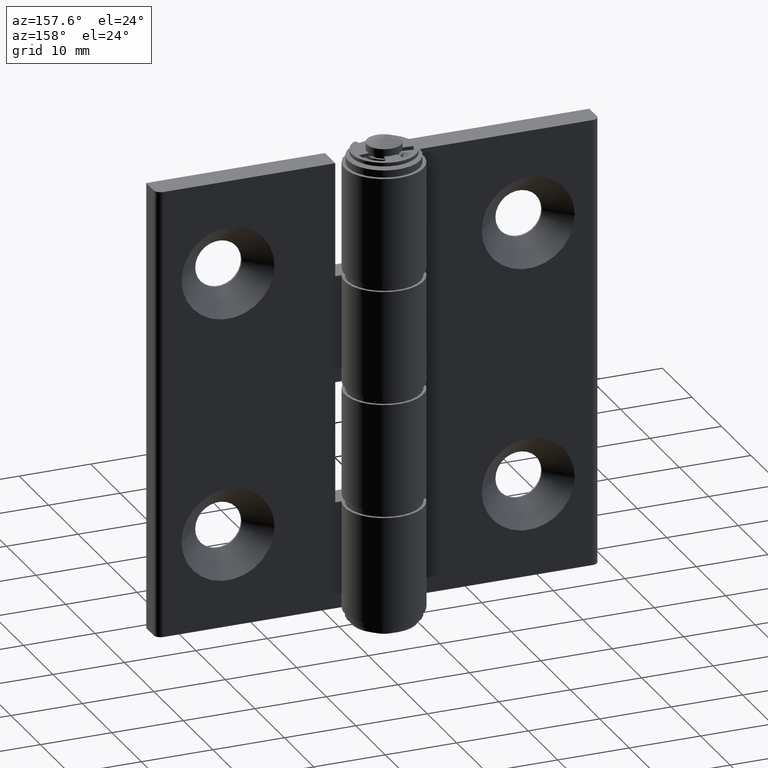
[diagram: clean part render]
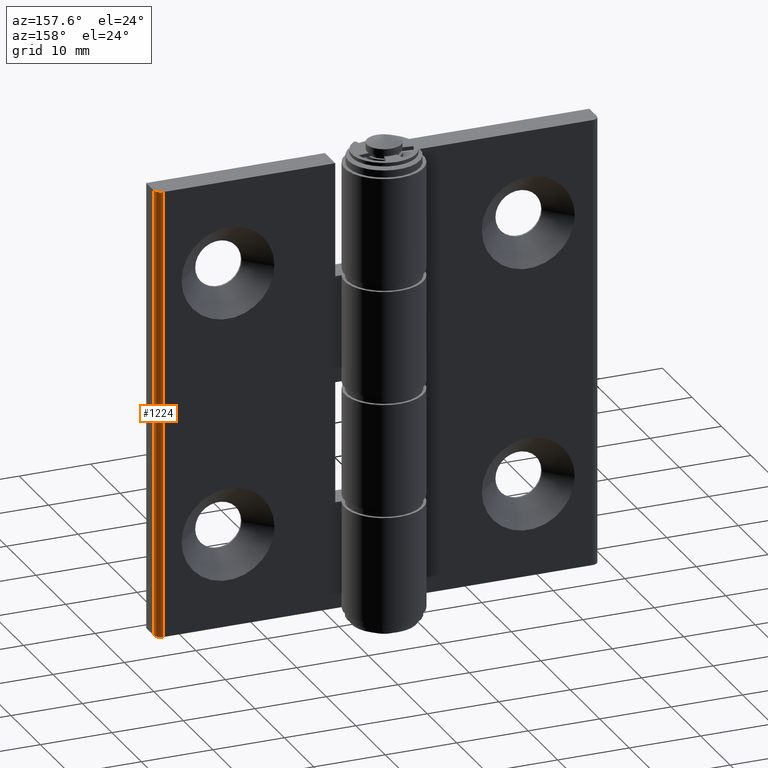
[diagram: same view with one face highlighted and labeled with its STEP entity id]
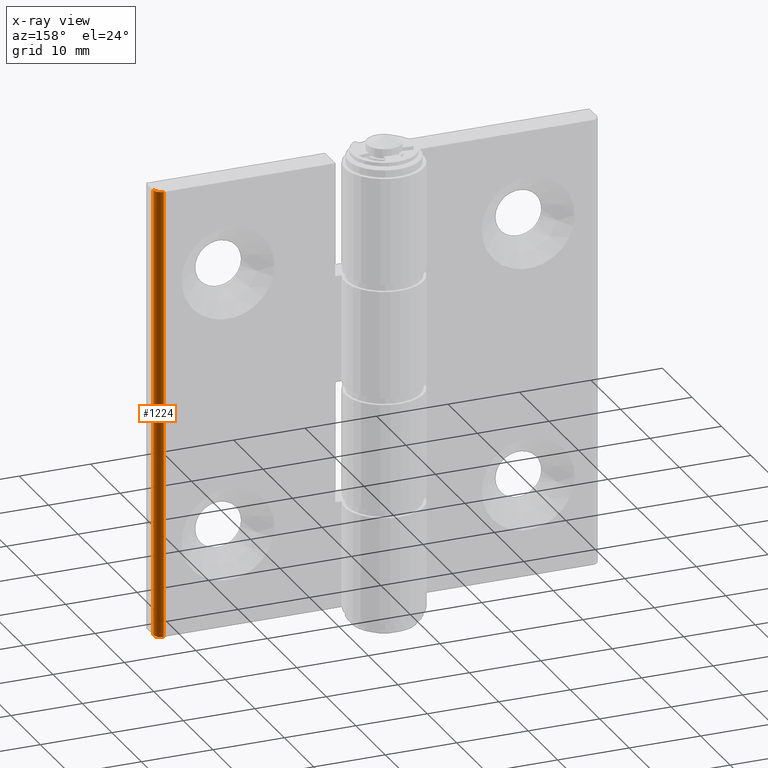
[diagram: x-ray of the same camera — body ghosted, the highlighted face saturated]
A machine part, auxiliary view. The second image highlights one B-rep face of the part: STEP entity #1224.
The next image is the same camera in x-ray: the body ghosted, the highlighted face saturated — about 0% of this face is hidden behind the body in this view.
In plain terms, the highlighted cylindrical surface (edge-blend (fillet) strip) has radius 1 mm, axis along (0, 0, -1).
Its self-contained STEP definition (entity closure, byte-faithful):
#211=FACE_OUTER_BOUND('',#309,.T.);
#309=EDGE_LOOP('',(#1040,#1041,#1042,#1043));
#415=LINE('',#2039,#495);
#416=LINE('',#2042,#496);
#495=VECTOR('',#1660,63.);
#496=VECTOR('',#1663,63.);
#564=CIRCLE('',#1352,1.);
#565=CIRCLE('',#1353,1.);
#660=VERTEX_POINT('',#2035);
#661=VERTEX_POINT('',#2036);
#662=VERTEX_POINT('',#2038);
#663=VERTEX_POINT('',#2040);
#797=EDGE_CURVE('',#660,#661,#564,.T.);
#798=EDGE_CURVE('',#661,#662,#415,.T.);
#799=EDGE_CURVE('',#662,#663,#565,.T.);
#800=EDGE_CURVE('',#663,#660,#416,.T.);
#1040=ORIENTED_EDGE('',*,*,#797,.T.);
#1041=ORIENTED_EDGE('',*,*,#798,.T.);
#1042=ORIENTED_EDGE('',*,*,#799,.T.);
#1043=ORIENTED_EDGE('',*,*,#800,.T.);
#1166=CYLINDRICAL_SURFACE('',#1351,1.);
#1224=ADVANCED_FACE('',(#211),#1166,.T.);
#1351=AXIS2_PLACEMENT_3D('',#2034,#1656,#1657);
#1352=AXIS2_PLACEMENT_3D('',#2037,#1658,#1659);
#1353=AXIS2_PLACEMENT_3D('',#2041,#1661,#1662);
#1656=DIRECTION('center_axis',(0.,0.,-1.));
#1657=DIRECTION('ref_axis',(0.707106781186547,0.707106781186548,0.));
#1658=DIRECTION('center_axis',(0.,0.,1.));
#1659=DIRECTION('ref_axis',(0.707106781186547,0.707106781186548,0.));
#1660=DIRECTION('',(0.,0.,1.));
#1661=DIRECTION('center_axis',(0.,0.,-1.));
#1662=DIRECTION('ref_axis',(0.707106781186547,0.707106781186548,0.));
#1663=DIRECTION('',(0.,0.,-1.));
#2034=CARTESIAN_POINT('Origin',(30.,2.5,0.));
#2035=CARTESIAN_POINT('',(31.,2.5,-63.));
#2036=CARTESIAN_POINT('',(30.,3.5,-63.));
#2037=CARTESIAN_POINT('Origin',(30.,2.5,-63.));
#2038=CARTESIAN_POINT('',(30.,3.5,0.));
#2039=CARTESIAN_POINT('',(30.,3.5,0.));
#2040=CARTESIAN_POINT('',(31.,2.5,0.));
#2041=CARTESIAN_POINT('Origin',(30.,2.5,0.));
#2042=CARTESIAN_POINT('',(31.,2.5,0.));